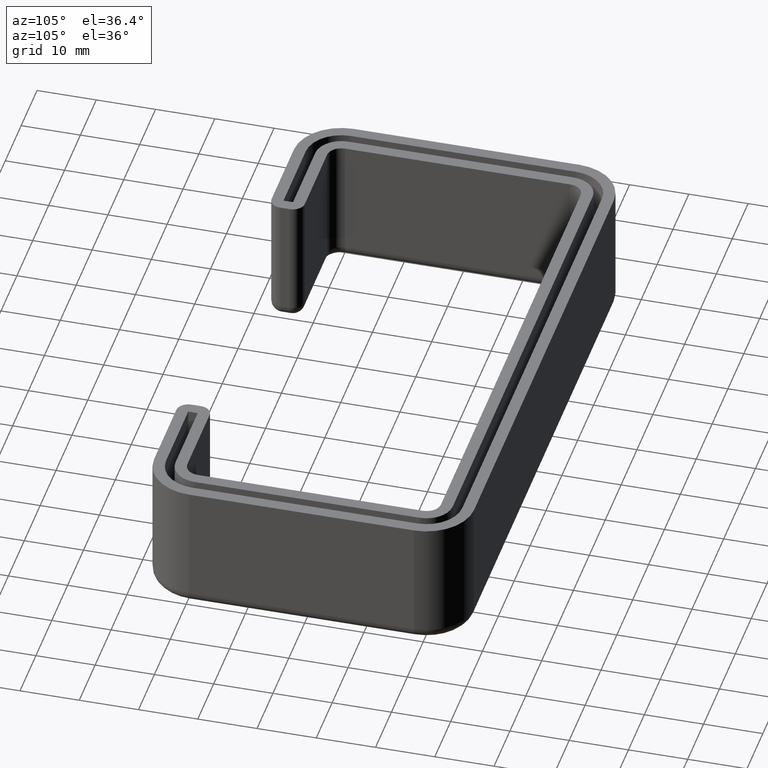
[diagram: clean part render]
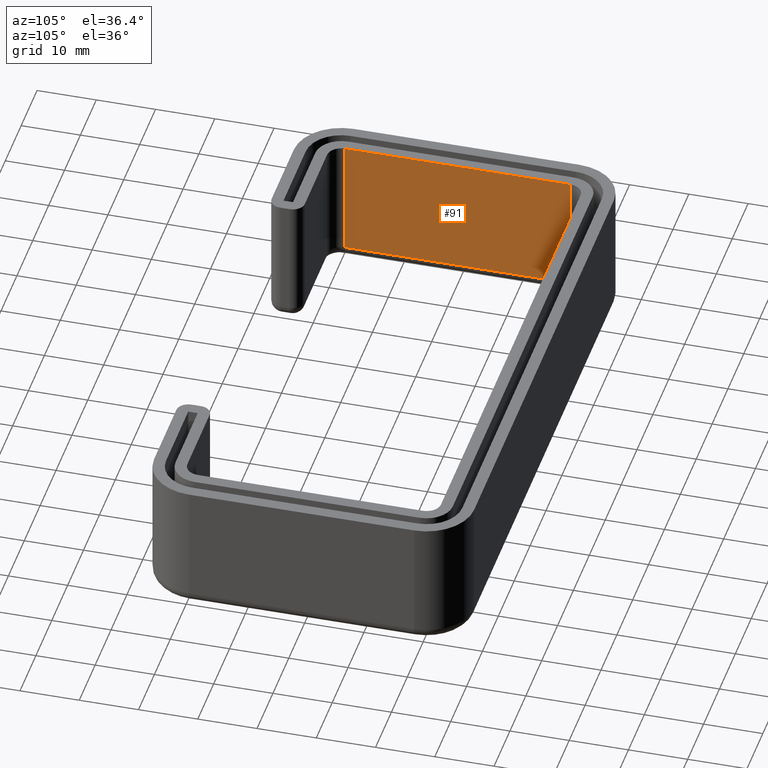
[diagram: same view with one face highlighted and labeled with its STEP entity id]
A machine part, auxiliary view. The second image highlights one B-rep face of the part: STEP entity #91.
In plain terms, the highlighted planar face has unit normal (1, 0, 0).
Its self-contained STEP definition (entity closure, byte-faithful):
#91 = ADVANCED_FACE( '', ( #180 ), #181, .T. );
#180 = FACE_OUTER_BOUND( '', #323, .T. );
#181 = PLANE( '', #324 );
#323 = EDGE_LOOP( '', ( #616, #617, #618, #619 ) );
#324 = AXIS2_PLACEMENT_3D( '', #620, #621, #622 );
#616 = ORIENTED_EDGE( '', *, *, #1077, .T. );
#617 = ORIENTED_EDGE( '', *, *, #1098, .T. );
#618 = ORIENTED_EDGE( '', *, *, #1108, .F. );
#619 = ORIENTED_EDGE( '', *, *, #1004, .T. );
#620 = CARTESIAN_POINT( '', ( -46.4000000000003, 19.0000000000001, -3.46944695195361E-015 ) );
#621 = DIRECTION( '', ( 1.00000000000000, 0.000000000000000, 0.000000000000000 ) );
#622 = DIRECTION( '', ( 0.000000000000000, 1.00000000000000, 0.000000000000000 ) );
#1004 = EDGE_CURVE( '', #1187, #1185, #1188, .T. );
#1077 = EDGE_CURVE( '', #1185, #1323, #1325, .T. );
#1098 = EDGE_CURVE( '', #1323, #1362, #1364, .F. );
#1108 = EDGE_CURVE( '', #1187, #1362, #1378, .T. );
#1185 = VERTEX_POINT( '', #1472 );
#1187 = VERTEX_POINT( '', #1474 );
#1188 = LINE( '', #1475, #1476 );
#1323 = VERTEX_POINT( '', #1652 );
#1325 = LINE( '', #1654, #1655 );
#1362 = VERTEX_POINT( '', #1702 );
#1364 = LINE( '', #1704, #1705 );
#1378 = LINE( '', #1722, #1723 );
#1472 = CARTESIAN_POINT( '', ( -46.4000000000003, -18.9999999999999, -3.46944695195361E-015 ) );
#1474 = CARTESIAN_POINT( '', ( -46.4000000000003, 19.0000000000002, -3.46944695195361E-015 ) );
#1475 = CARTESIAN_POINT( '', ( -46.4000000000003, 19.0000000000001, -3.46944695195361E-015 ) );
#1476 = VECTOR( '', #1858, 1000.00000000000 );
#1652 = CARTESIAN_POINT( '', ( -46.4000000000003, -18.9999999999999, -20.0000000000000 ) );
#1654 = CARTESIAN_POINT( '', ( -46.4000000000003, -18.9999999999999, -3.46944695195361E-015 ) );
#1655 = VECTOR( '', #1993, 1000.00000000000 );
#1702 = CARTESIAN_POINT( '', ( -46.4000000000003, 19.0000000000002, -20.0000000000000 ) );
#1704 = CARTESIAN_POINT( '', ( -46.4000000000003, 19.0000000000001, -20.0000000000000 ) );
#1705 = VECTOR( '', #2034, 1000.00000000000 );
#1722 = CARTESIAN_POINT( '', ( -46.4000000000003, 19.0000000000002, -3.46944695195361E-015 ) );
#1723 = VECTOR( '', #2056, 1000.00000000000 );
#1858 = DIRECTION( '', ( 0.000000000000000, -1.00000000000000, 0.000000000000000 ) );
#1993 = DIRECTION( '', ( 0.000000000000000, 0.000000000000000, -1.00000000000000 ) );
#2034 = DIRECTION( '', ( 0.000000000000000, -1.00000000000000, 0.000000000000000 ) );
#2056 = DIRECTION( '', ( 0.000000000000000, 0.000000000000000, -1.00000000000000 ) );